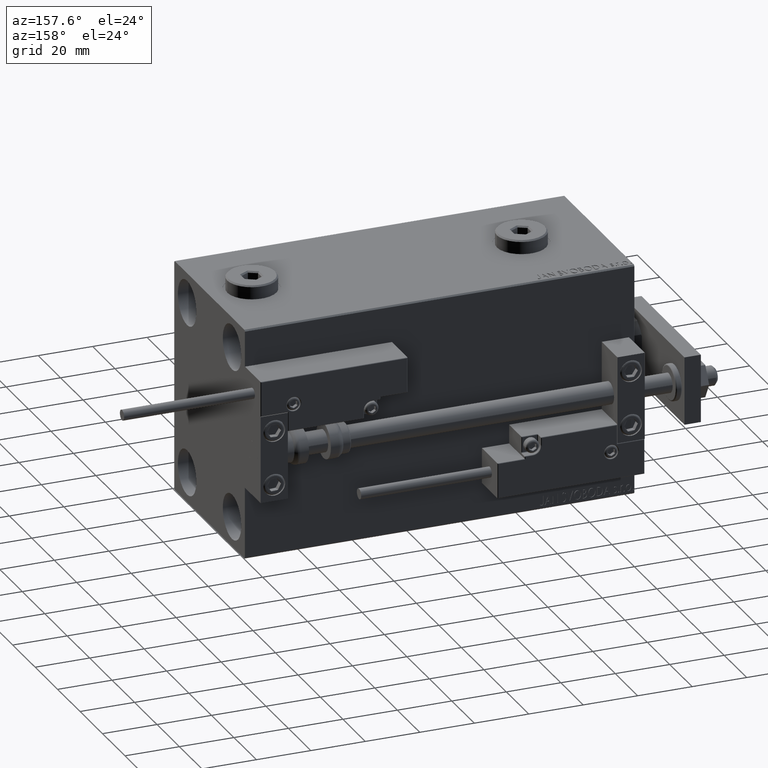
[diagram: clean part render]
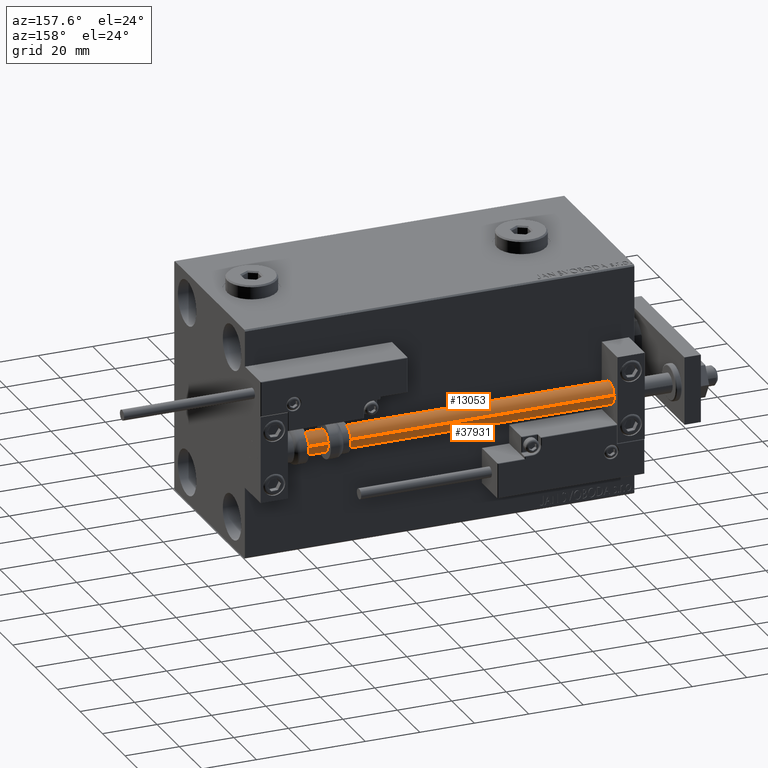
[diagram: same view with one multi-face feature highlighted, each face labeled with its STEP entity id]
A machine part, auxiliary view. The highlighted faces form ONE feature: a constant-radius fillet chain: 2 tangent blend faces with common blend radius 4 mm. The faces share edges in the B-rep.
Their STEP definitions:
[1] entity #13053 (Cylinder):
#4430 = EDGE_LOOP ( 'NONE', ( #32614, #12818, #27947, #25181 ) ) ;
#6382 = CYLINDRICAL_SURFACE ( 'NONE', #38116, 4.000000000000000000 ) ;
#9685 = LINE ( 'NONE', #25588, #27550 ) ;
#10272 = FACE_OUTER_BOUND ( 'NONE', #4430, .T. ) ;
#10666 = DIRECTION ( 'NONE',  ( 1.000000000000000000, 0.000000000000000000, 0.000000000000000000 ) ) ;
#12426 = EDGE_CURVE ( 'NONE', #31633, #47921, #43899, .T. ) ;
#12818 = ORIENTED_EDGE ( 'NONE', *, *, #23612, .T. ) ;
#13053 = ADVANCED_FACE ( 'NONE', ( #10272 ), #6382, .T. ) ;
#14580 = CARTESIAN_POINT ( 'NONE',  ( 0.000000000000000000, 0.000000000000000000, 2.000000000000029310 ) ) ;
#17363 = VERTEX_POINT ( 'NONE', #41716 ) ;
#17845 = DIRECTION ( 'NONE',  ( -1.000000000000000000, 0.000000000000000000, 0.000000000000000000 ) ) ;
#18304 = LINE ( 'NONE', #30030, #27516 ) ;
#20976 = AXIS2_PLACEMENT_3D ( 'NONE', #30514, #46413, #22181 ) ;
#22181 = DIRECTION ( 'NONE',  ( 1.000000000000000000, 0.000000000000000000, 0.000000000000000000 ) ) ;
#22273 = CARTESIAN_POINT ( 'NONE',  ( 0.000000000000000000, 0.000000000000000000, 143.0000000000000000 ) ) ;
#23612 = EDGE_CURVE ( 'NONE', #35960, #31633, #18304, .T. ) ;
#23641 = CARTESIAN_POINT ( 'NONE',  ( 4.000000000000000000, 4.898587196589412829E-16, 143.0000000000000000 ) ) ;
#25181 = ORIENTED_EDGE ( 'NONE', *, *, #37578, .F. ) ;
#25588 = CARTESIAN_POINT ( 'NONE',  ( -4.000000000000000000, 0.000000000000000000, 143.0000000000000000 ) ) ;
#26313 = EDGE_CURVE ( 'NONE', #35960, #17363, #43440, .T. ) ;
#27516 = VECTOR ( 'NONE', #45930, 1000.000000000000000 ) ;
#27550 = VECTOR ( 'NONE', #41487, 1000.000000000000000 ) ;
#27947 = ORIENTED_EDGE ( 'NONE', *, *, #12426, .T. ) ;
#30030 = CARTESIAN_POINT ( 'NONE',  ( 4.000000000000000000, 4.898587196589412829E-16, 143.0000000000000000 ) ) ;
#30514 = CARTESIAN_POINT ( 'NONE',  ( 0.000000000000000000, 0.000000000000000000, 143.0000000000000000 ) ) ;
#31633 = VERTEX_POINT ( 'NONE', #34064 ) ;
#32614 = ORIENTED_EDGE ( 'NONE', *, *, #26313, .F. ) ;
#34008 = DIRECTION ( 'NONE',  ( -0.000000000000000000, -0.000000000000000000, -1.000000000000000000 ) ) ;
#34064 = CARTESIAN_POINT ( 'NONE',  ( 4.000000000000000000, 4.898587196589412829E-16, 2.000000000000029310 ) ) ;
#35960 = VERTEX_POINT ( 'NONE', #23641 ) ;
#37578 = EDGE_CURVE ( 'NONE', #17363, #47921, #9685, .T. ) ;
#38116 = AXIS2_PLACEMENT_3D ( 'NONE', #22273, #34008, #17845 ) ;
#41425 = AXIS2_PLACEMENT_3D ( 'NONE', #14580, #46381, #10666 ) ;
#41487 = DIRECTION ( 'NONE',  ( -0.000000000000000000, -0.000000000000000000, -1.000000000000000000 ) ) ;
#41716 = CARTESIAN_POINT ( 'NONE',  ( -4.000000000000000000, 0.000000000000000000, 143.0000000000000000 ) ) ;
#43440 = CIRCLE ( 'NONE', #20976, 4.000000000000000000 ) ;
#43899 = CIRCLE ( 'NONE', #41425, 4.000000000000000000 ) ;
#45930 = DIRECTION ( 'NONE',  ( -0.000000000000000000, -0.000000000000000000, -1.000000000000000000 ) ) ;
#46375 = CARTESIAN_POINT ( 'NONE',  ( -4.000000000000000000, 0.000000000000000000, 2.000000000000029310 ) ) ;
#46381 = DIRECTION ( 'NONE',  ( -0.000000000000000000, -0.000000000000000000, 1.000000000000000000 ) ) ;
#46413 = DIRECTION ( 'NONE',  ( 0.000000000000000000, 0.000000000000000000, 1.000000000000000000 ) ) ;
#47921 = VERTEX_POINT ( 'NONE', #46375 ) ;
[2] entity #37931 (Cylinder):
#6139 = EDGE_LOOP ( 'NONE', ( #29887, #51241, #22049, #13878 ) ) ;
#7258 = DIRECTION ( 'NONE',  ( -1.000000000000000000, 0.000000000000000000, 0.000000000000000000 ) ) ;
#9544 = DIRECTION ( 'NONE',  ( -0.000000000000000000, -0.000000000000000000, 1.000000000000000000 ) ) ;
#9685 = LINE ( 'NONE', #25588, #27550 ) ;
#11422 = EDGE_CURVE ( 'NONE', #47921, #31633, #48029, .T. ) ;
#11755 = AXIS2_PLACEMENT_3D ( 'NONE', #45781, #41883, #42395 ) ;
#13878 = ORIENTED_EDGE ( 'NONE', *, *, #11422, .T. ) ;
#15574 = FACE_OUTER_BOUND ( 'NONE', #6139, .T. ) ;
#17363 = VERTEX_POINT ( 'NONE', #41716 ) ;
#18304 = LINE ( 'NONE', #30030, #27516 ) ;
#22049 = ORIENTED_EDGE ( 'NONE', *, *, #37578, .T. ) ;
#23152 = CARTESIAN_POINT ( 'NONE',  ( 0.000000000000000000, 0.000000000000000000, 143.0000000000000000 ) ) ;
#23612 = EDGE_CURVE ( 'NONE', #35960, #31633, #18304, .T. ) ;
#23641 = CARTESIAN_POINT ( 'NONE',  ( 4.000000000000000000, 4.898587196589412829E-16, 143.0000000000000000 ) ) ;
#25567 = AXIS2_PLACEMENT_3D ( 'NONE', #34304, #9544, #41600 ) ;
#25588 = CARTESIAN_POINT ( 'NONE',  ( -4.000000000000000000, 0.000000000000000000, 143.0000000000000000 ) ) ;
#27066 = CYLINDRICAL_SURFACE ( 'NONE', #45004, 4.000000000000000000 ) ;
#27516 = VECTOR ( 'NONE', #45930, 1000.000000000000000 ) ;
#27550 = VECTOR ( 'NONE', #41487, 1000.000000000000000 ) ;
#29887 = ORIENTED_EDGE ( 'NONE', *, *, #23612, .F. ) ;
#30030 = CARTESIAN_POINT ( 'NONE',  ( 4.000000000000000000, 4.898587196589412829E-16, 143.0000000000000000 ) ) ;
#31633 = VERTEX_POINT ( 'NONE', #34064 ) ;
#34064 = CARTESIAN_POINT ( 'NONE',  ( 4.000000000000000000, 4.898587196589412829E-16, 2.000000000000029310 ) ) ;
#34304 = CARTESIAN_POINT ( 'NONE',  ( 0.000000000000000000, 0.000000000000000000, 2.000000000000029310 ) ) ;
#35960 = VERTEX_POINT ( 'NONE', #23641 ) ;
#37578 = EDGE_CURVE ( 'NONE', #17363, #47921, #9685, .T. ) ;
#37931 = ADVANCED_FACE ( 'NONE', ( #15574 ), #27066, .T. ) ;
#38807 = DIRECTION ( 'NONE',  ( -0.000000000000000000, -0.000000000000000000, -1.000000000000000000 ) ) ;
#39845 = EDGE_CURVE ( 'NONE', #17363, #35960, #41756, .T. ) ;
#41487 = DIRECTION ( 'NONE',  ( -0.000000000000000000, -0.000000000000000000, -1.000000000000000000 ) ) ;
#41600 = DIRECTION ( 'NONE',  ( 1.000000000000000000, 0.000000000000000000, 0.000000000000000000 ) ) ;
#41716 = CARTESIAN_POINT ( 'NONE',  ( -4.000000000000000000, 0.000000000000000000, 143.0000000000000000 ) ) ;
#41756 = CIRCLE ( 'NONE', #11755, 4.000000000000000000 ) ;
#41883 = DIRECTION ( 'NONE',  ( 0.000000000000000000, 0.000000000000000000, 1.000000000000000000 ) ) ;
#42395 = DIRECTION ( 'NONE',  ( 1.000000000000000000, 0.000000000000000000, 0.000000000000000000 ) ) ;
#45004 = AXIS2_PLACEMENT_3D ( 'NONE', #23152, #38807, #7258 ) ;
#45781 = CARTESIAN_POINT ( 'NONE',  ( 0.000000000000000000, 0.000000000000000000, 143.0000000000000000 ) ) ;
#45930 = DIRECTION ( 'NONE',  ( -0.000000000000000000, -0.000000000000000000, -1.000000000000000000 ) ) ;
#46375 = CARTESIAN_POINT ( 'NONE',  ( -4.000000000000000000, 0.000000000000000000, 2.000000000000029310 ) ) ;
#47921 = VERTEX_POINT ( 'NONE', #46375 ) ;
#48029 = CIRCLE ( 'NONE', #25567, 4.000000000000000000 ) ;
#51241 = ORIENTED_EDGE ( 'NONE', *, *, #39845, .F. ) ;